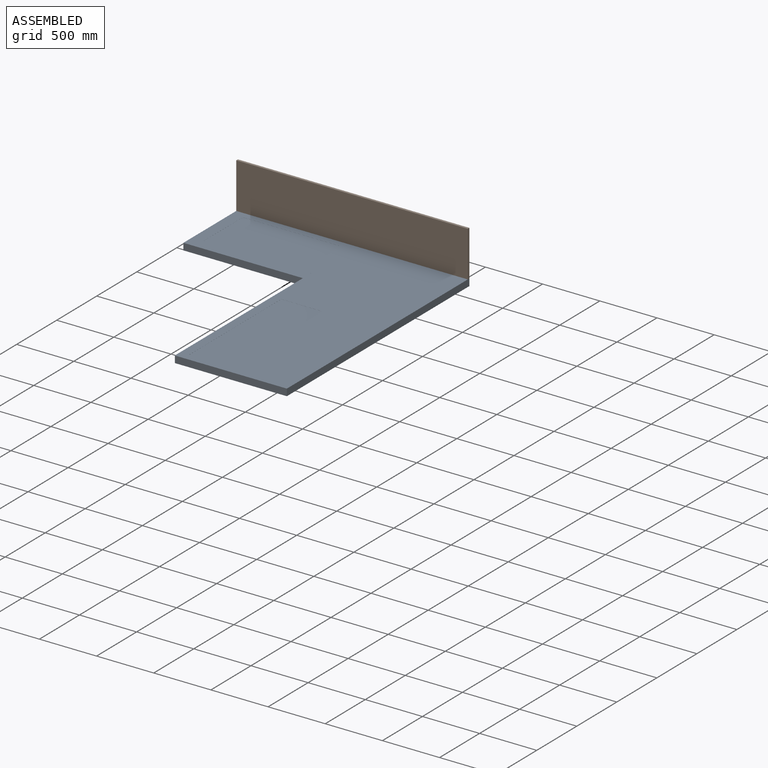
[diagram: assembled view]
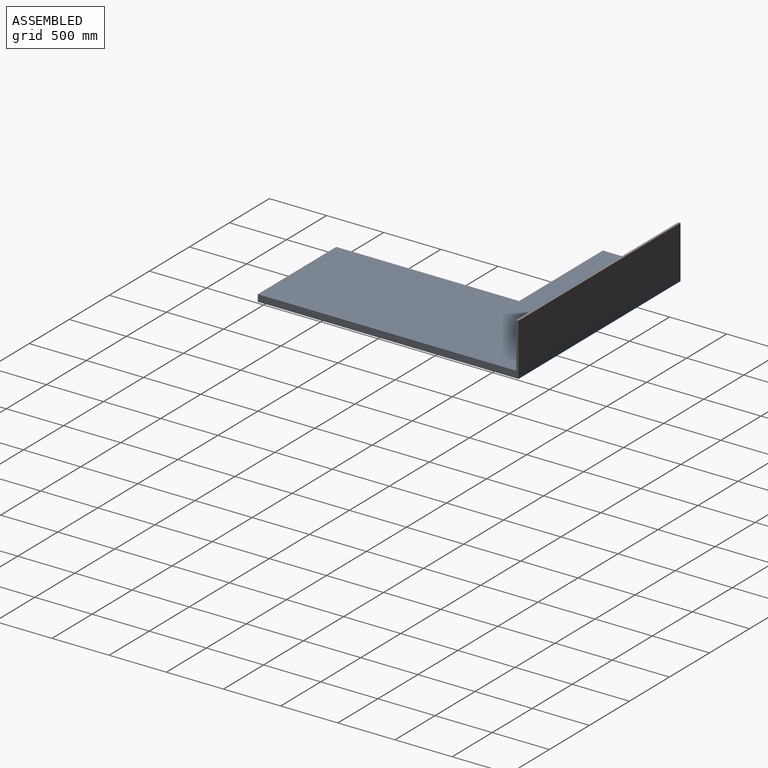
[diagram: assembled view, second angle]
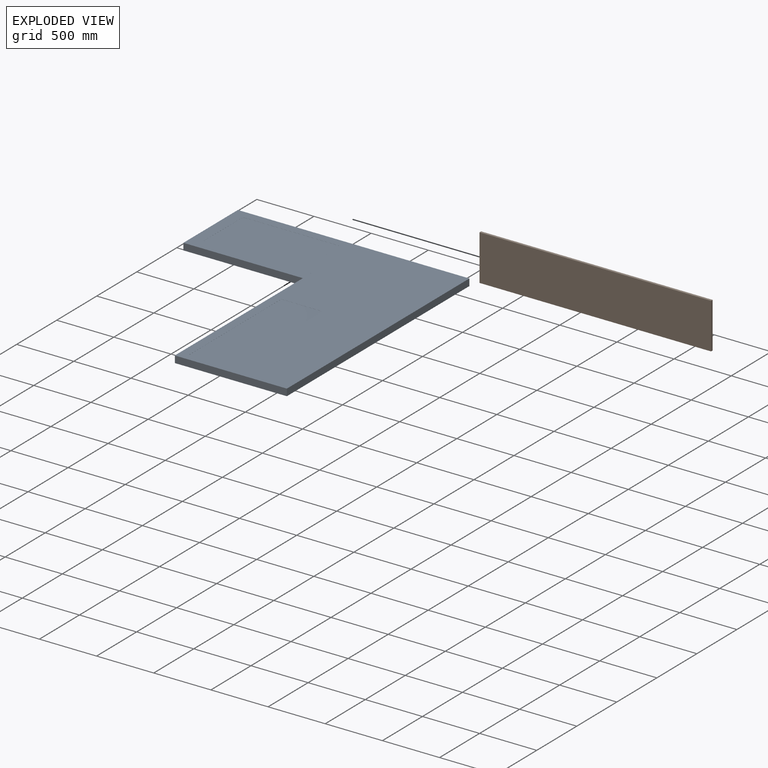
[diagram: exploded view]
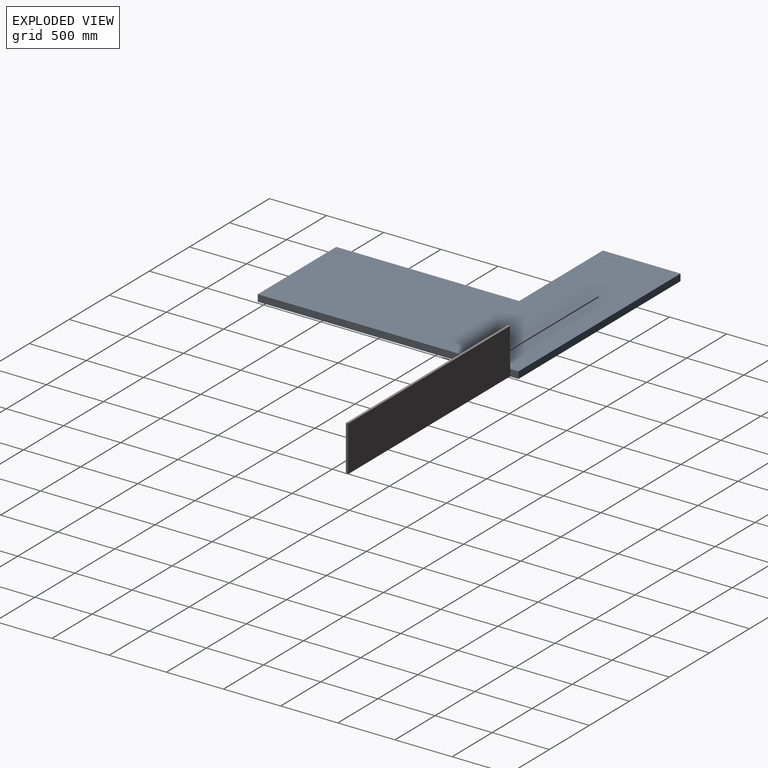
[diagram: exploded view, second angle]
ASSEMBLY  parts=2 mates=3
PART A: 29 faces, bbox 2025x2280x60 mm
  f0: plane 2280x980mm, normal (0,0,1), area 1816885.8mm2, adj f3,f4,f5,f6,f20,f21,f22,f23
  f1: plane 1044.99x680mm, normal (0,0,1), area 264165.8mm2, adj f2,f3,f7,f9,f11,f12,f13,f14
  f2: plane 1045x60mm, normal (0,-1,0), area 62700mm2, adj f1,f4,f7,f8,f9,f10
  f3: plane 2025x60mm, normal (0,1,0), area 121500mm2, adj f0,f1,f4,f6,f7,f8,f9,f10
  f4: plane 2280x60mm, normal (-1,0,0), area 96340mm2, adj f0,f2,f3,f5,f8,f10
  f5: plane 980x60mm, normal (0,-1,0), area 58800mm2, adj f0,f4,f6,f8
  f6: plane 2280x60mm, normal (1,0,0), area 136800mm2, adj f0,f3,f5,f8
  f7: plane 680x60mm, normal (-1,0,0), area 40800mm2, adj f1,f2,f3,f8
  f8: plane 2280x2025mm, normal (0,0,-1), area 2945000mm2, adj f2,f3,f4,f5,f6,f7
  f9: plane 680x0.5mm, normal (1,0,0), area 340mm2, adj f1,f2,f3,f10
  f10: plane 680x0.01mm, normal (0,0,1), area 6.8mm2, adj f2,f3,f4,f9
  f11: plane 800x0.5mm, normal (0,-1,0), area 400mm2, adj f1,f12,f18,f19
  f12: cylinder r=30mm len=30mm, axis (0,0,1), area 23.6mm2, adj f1,f11,f13,f19
  f13: plane 460x0.5mm, normal (1,0,0), area 230mm2, adj f1,f12,f14,f19
  f14: cylinder r=30mm len=30mm, axis (0,0,1), area 23.6mm2, adj f1,f13,f15,f19
  f15: plane 800x0.5mm, normal (0,1,0), area 400mm2, adj f1,f14,f16,f19
  f16: cylinder r=30mm len=30mm, axis (0,0,1), area 23.6mm2, adj f1,f15,f17,f19
  f17: plane 460x0.5mm, normal (-1,0,0), area 230mm2, adj f1,f16,f18,f19
  f18: cylinder r=30mm len=30mm, axis (0,0,1), area 23.6mm2, adj f1,f11,f17,f19
  f19: plane 860x520mm, normal (0,0,1), area 446427.4mm2, adj f11,f12,f13,f14,f15,f16,f17,f18
  f20: plane 340x0.5mm, normal (0,-1,0), area 170mm2, adj f0,f21,f27,f28
  f21: cylinder r=10mm len=10mm, axis (0,0,1), area 7.9mm2, adj f0,f20,f22,f28
  f22: plane 1140x0.5mm, normal (1,0,0), area 570mm2, adj f0,f21,f23,f28
  f23: cylinder r=10mm len=10mm, axis (0,0,1), area 7.9mm2, adj f0,f22,f24,f28
  f24: plane 340x0.5mm, normal (0,1,0), area 170mm2, adj f0,f23,f25,f28
  f25: cylinder r=10mm len=10mm, axis (0,0,1), area 7.9mm2, adj f0,f24,f26,f28
  f26: plane 1140x0.5mm, normal (-1,0,0), area 570mm2, adj f0,f25,f27,f28
  f27: cylinder r=10mm len=10mm, axis (0,0,1), area 7.9mm2, adj f0,f20,f26,f28
  f28: plane 1160x360mm, normal (0,0,1), area 417514.2mm2, adj f20,f21,f22,f23,f24,f25,f26,f27
PART B: 6 faces, bbox 2025x20x400 mm
  f0: plane 400x20mm, normal (1,0,0), area 8000mm2, adj f1,f3,f4,f5
  f1: plane 2025x20mm, normal (0,0,1), area 40500mm2, adj f0,f2,f4,f5
  f2: plane 400x20mm, normal (-1,0,0), area 8000mm2, adj f1,f3,f4,f5
  f3: plane 2025x20mm, normal (0,0,-1), area 40500mm2, adj f0,f2,f4,f5
  f4: plane 2025x400mm, normal (0,-1,0), area 810000mm2, adj f0,f1,f2,f3
  f5: plane 2025x400mm, normal (0,1,0), area 810000mm2, adj f0,f1,f2,f3
PLACE A t=(32.96,458.62,-262.47)mm
PLACE B t=(1012.96,1138.62,-202.47)mm
MATE planar B.f0 <-> A.f6  axis (1,0,0) through (1012.96,1128.62,-2.47)mm
MATE planar B.f3 <-> A.f0  axis (0,0,-1) through (0.46,1128.62,-202.47)mm
MATE planar B.f5 <-> A.f3  axis (0,1,0) through (0.46,1138.62,-2.47)mm
